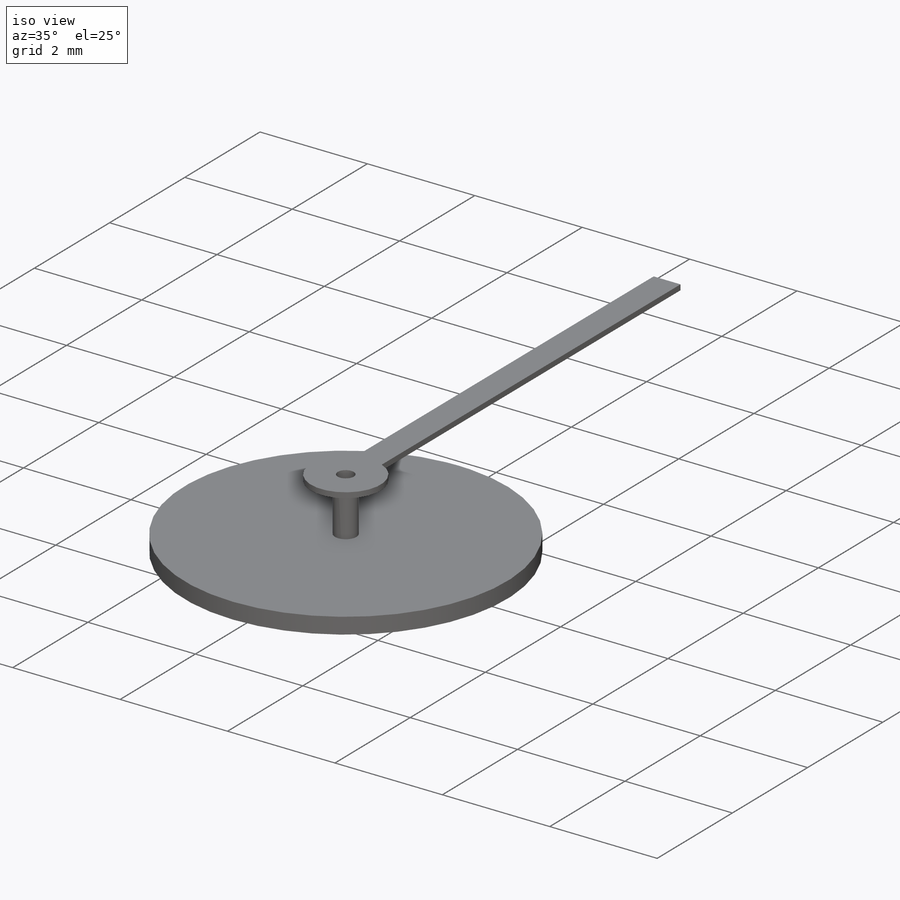
[diagram: iso view]
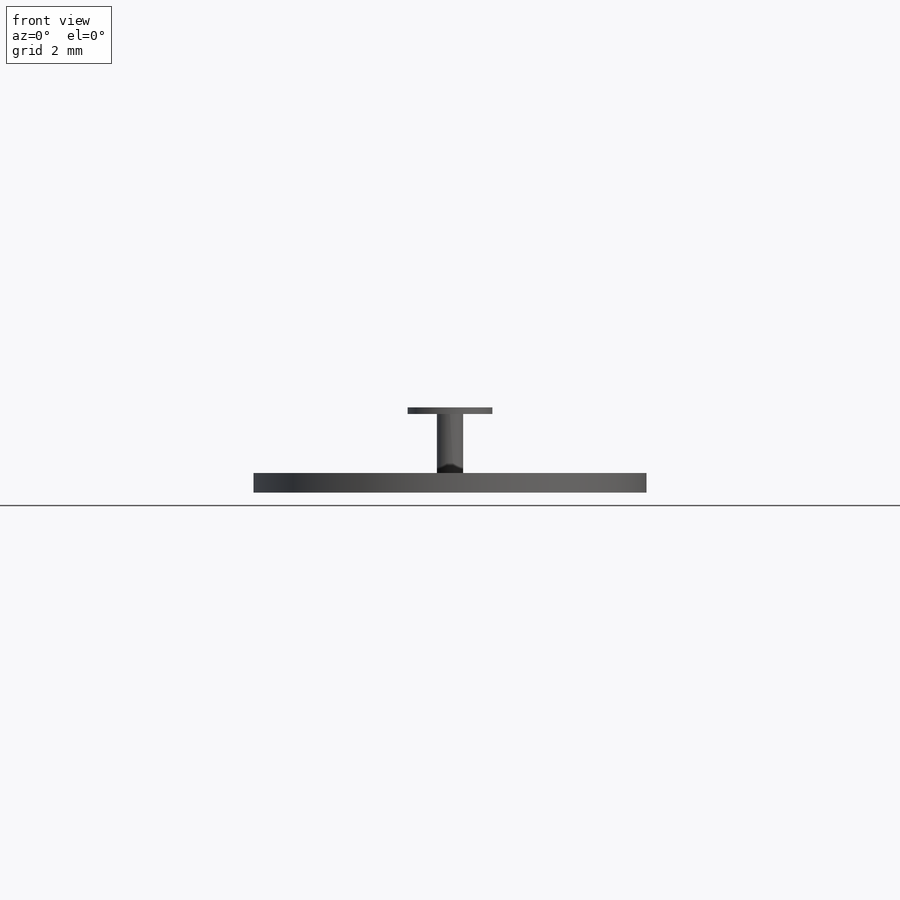
[diagram: front view]
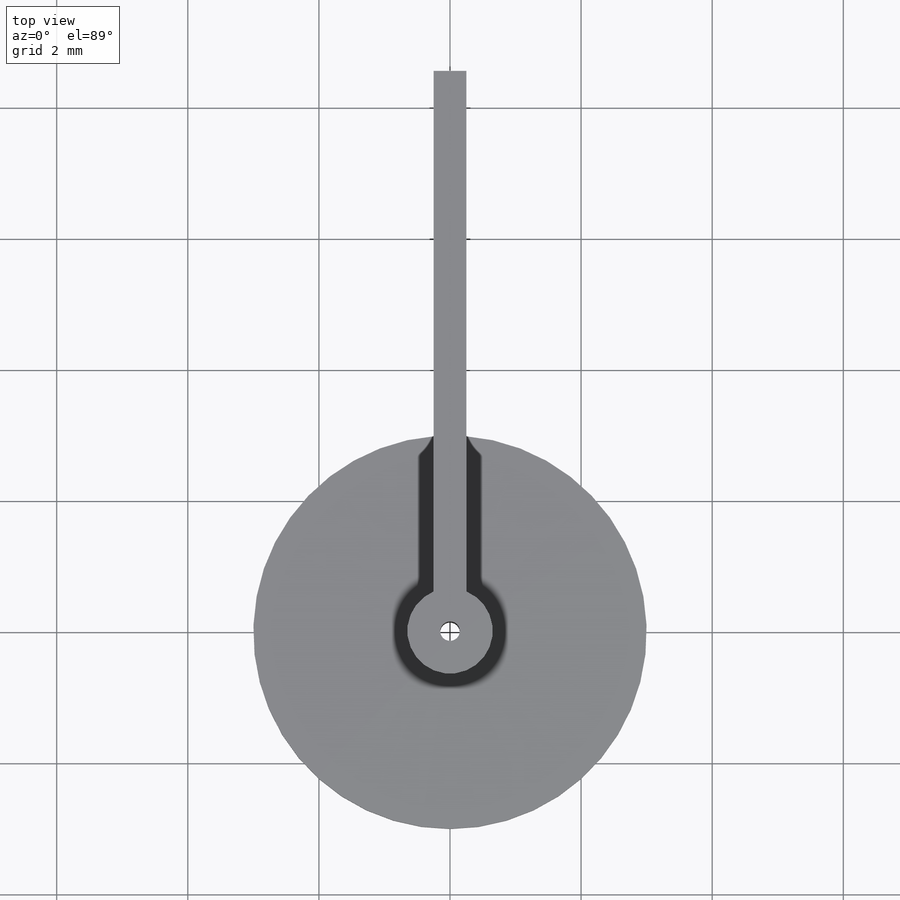
[diagram: top view]
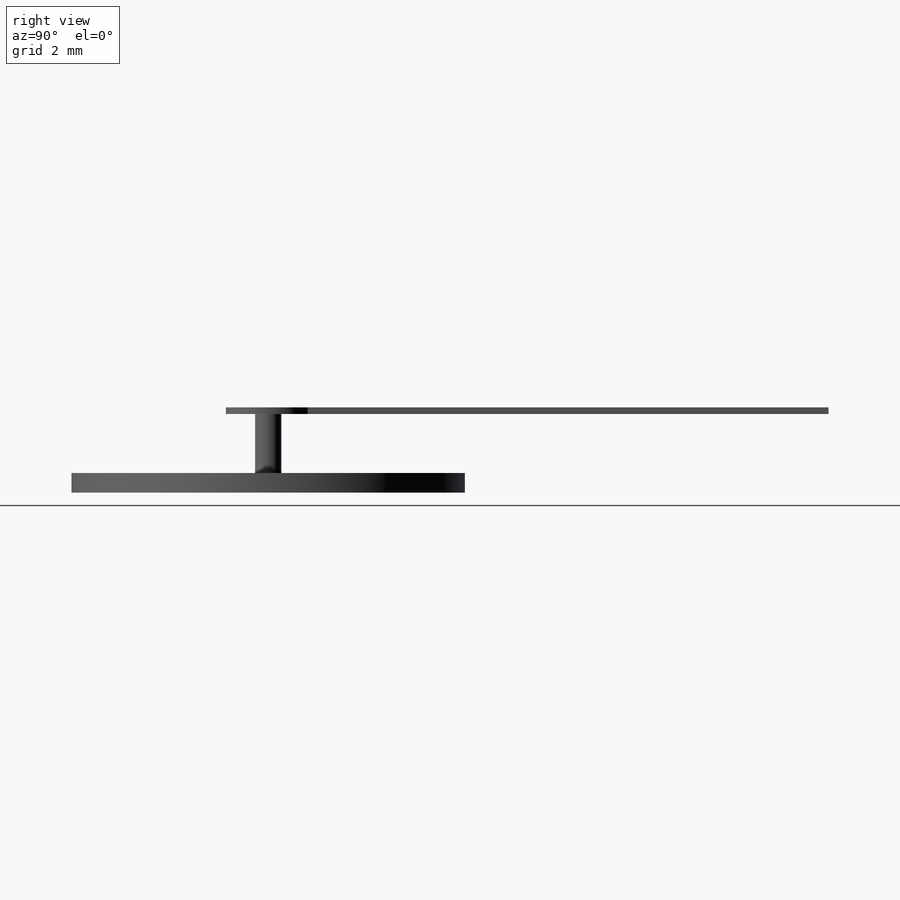
[diagram: right view]
SOLIDWORKS PART (.sldprt)
format: sldprt  version: not decoded by parser v0  size: 179,200 bytes
history: native  units: mm
features: sketch x4, extrude x3, material x1, cut_extrude x1 (+13 scaffold rows collapsed)
feature tree (22):
  scaffold x13  (default folders/planes/origin — collapsed)
  material  "Matériau <non spécifié>"
  sketch  "Sketch1"  dims[c1.D1=0.1mm c1.D2=1.0mm c2.D1=1.1mm c2.D2=2.0mm c2.D3=2.0mm c2.D4=1.2mm c3.D1=0.2mm c3.D2=~0.65114mm c3.D3=2.5mm c4.D2=16.0mm c4.D4=0.05mm c4.D1=0.15mm c5.D2=~4.306908mm c6.D2=~0.762624deg c6.D3=~0.255172mm c6.D5=0.5mm c6.D6=~7.847303mm c6.D7=8.0mm c6.D1=0.5mm]
  extrude  "Boss-Extrude1"  Depth=0.1mm
  sketch  "Sketch2"  dims[D1=0.4mm]
  extrude  "Boss-Extrude2"  Depth=1mm
  sketch  "Sketch3"  dims[D1=6.0mm]
  extrude  "Boss-Extrude3"  Depth=0.3mm
  sketch  "Sketch4"  dims[D1=0.3mm]
  cut_extrude  "Cut-Extrude1"  [1 undecoded]
decode coverage: 7 of 8 modeling features carry decoded parameters
note: ~ marks probable driven/reference dimensions
note: 1 parameter value undecoded
note: suppression state not decoded; provenance and decode notes live in map.json
